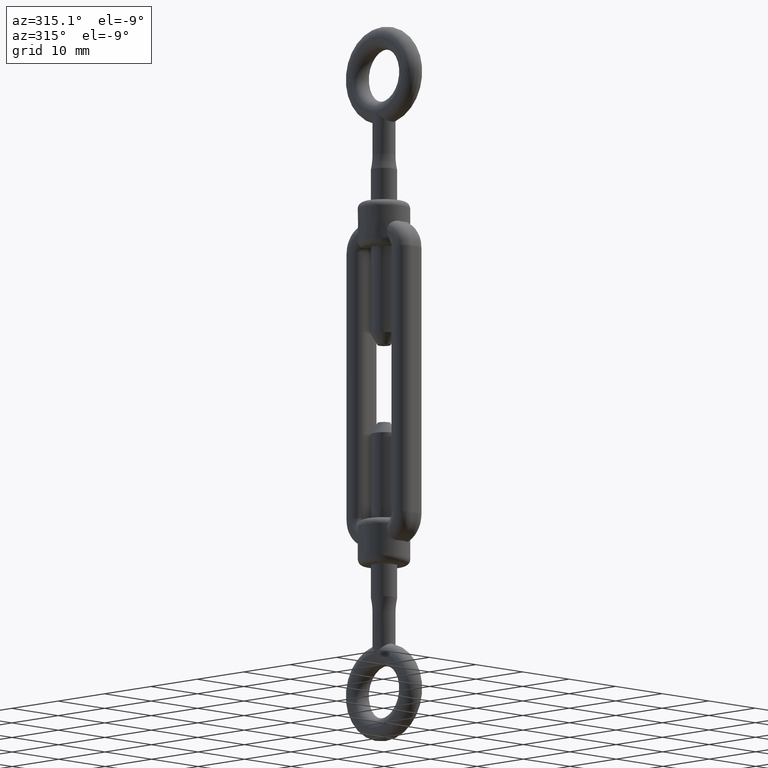
[diagram: clean part render]
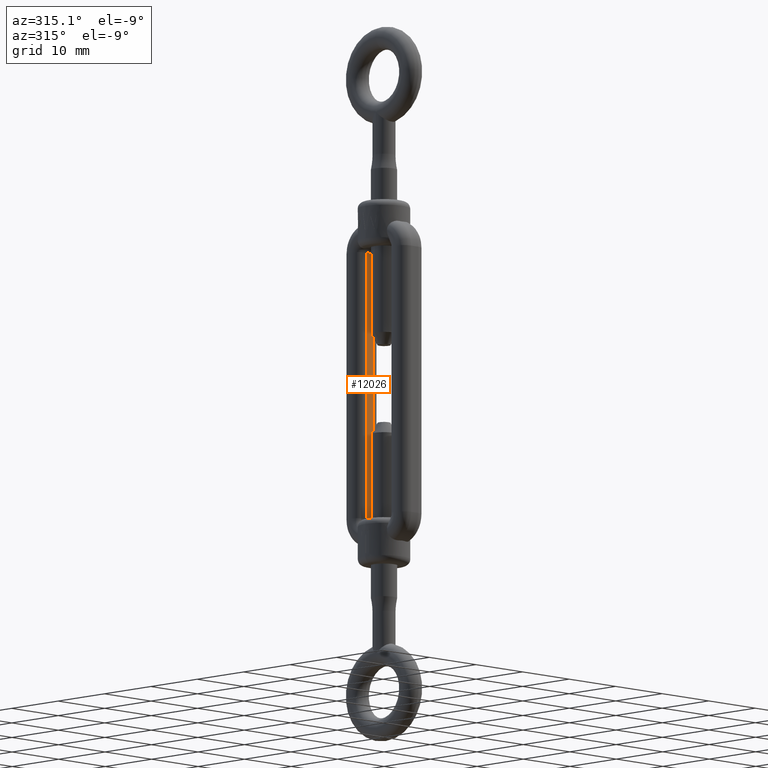
[diagram: same view with one face highlighted and labeled with its STEP entity id]
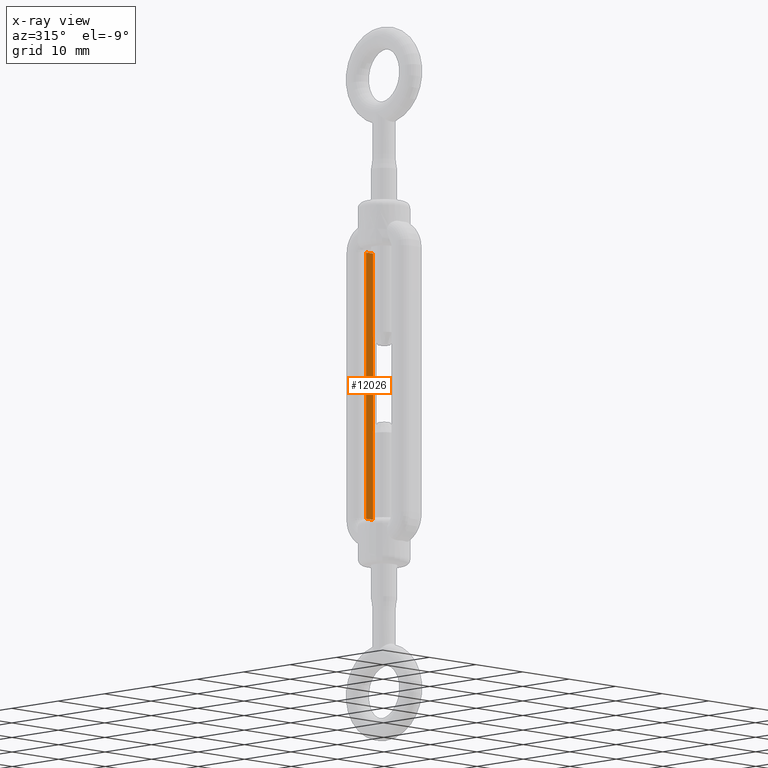
[diagram: x-ray of the same camera — body ghosted, the highlighted face saturated]
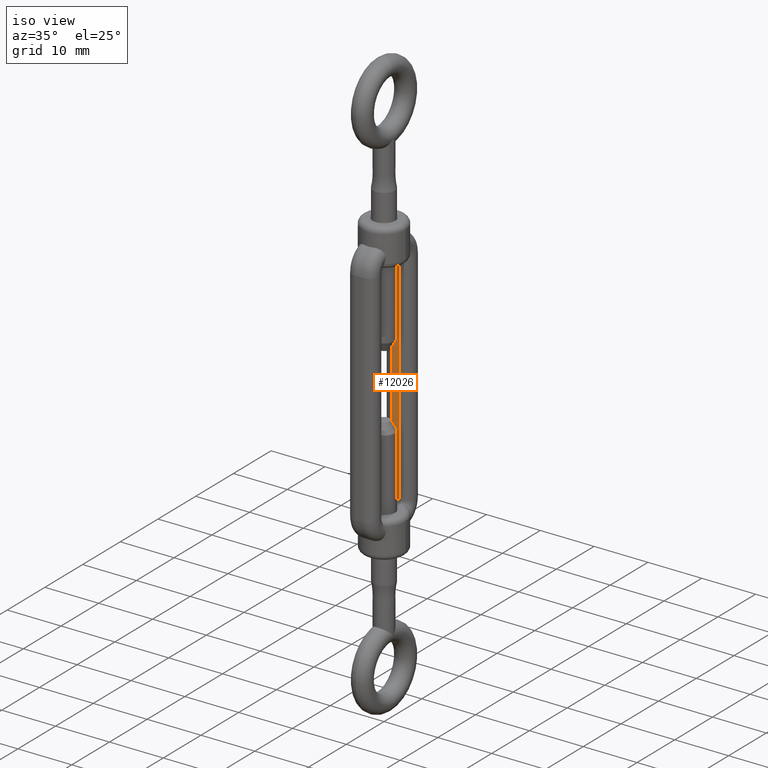
[diagram: same view with one face highlighted and labeled with its STEP entity id]
A machine part, auxiliary view. The second image highlights one B-rep face of the part: STEP entity #12026.
The next image is the same camera in x-ray: the body ghosted, the highlighted face saturated — about 0% of this face is hidden behind the body in this view.
A second angle (iso view) of the same face is appended — the face is thin or edge-on in the first view.
In plain terms, the highlighted planar face has unit normal (0, -1, 0).
Its self-contained STEP definition (entity closure, byte-faithful):
#382 = LINE ( 'NONE', #13721, #9232 ) ;
#590 = VECTOR ( 'NONE', #6315, 1000.000000000000000 ) ;
#595 = DIRECTION ( 'NONE',  ( 0.0000000000000000000, -1.057758217059028900E-016, -1.000000000000000000 ) ) ;
#741 = CARTESIAN_POINT ( 'NONE',  ( -0.7499999999999984500, 3.100000000000005400, 20.49999999999999300 ) ) ;
#2060 = VERTEX_POINT ( 'NONE', #10613 ) ;
#2294 = CARTESIAN_POINT ( 'NONE',  ( -0.7499999999999984500, 3.100000000000005400, 20.49999999999999300 ) ) ;
#3320 = VERTEX_POINT ( 'NONE', #7524 ) ;
#3341 = VERTEX_POINT ( 'NONE', #3486 ) ;
#3433 = DIRECTION ( 'NONE',  ( 0.0000000000000000000, -1.000000000000000000, 1.057758217059028900E-016 ) ) ;
#3486 = CARTESIAN_POINT ( 'NONE',  ( 0.7499999999999984500, 3.100000000000005400, 20.49999999999999300 ) ) ;
#4104 = VERTEX_POINT ( 'NONE', #13493 ) ;
#4444 = LINE ( 'NONE', #2294, #16666 ) ;
#4768 = DIRECTION ( 'NONE',  ( 0.0000000000000000000, -1.057758217059028900E-016, -1.000000000000000000 ) ) ;
#4949 = ORIENTED_EDGE ( 'NONE', *, *, #11794, .F. ) ;
#5566 = ORIENTED_EDGE ( 'NONE', *, *, #14064, .T. ) ;
#6315 = DIRECTION ( 'NONE',  ( -1.000000000000000000, 0.0000000000000000000, 0.0000000000000000000 ) ) ;
#6514 = EDGE_CURVE ( 'NONE', #4104, #2060, #382, .T. ) ;
#7182 = LINE ( 'NONE', #13918, #590 ) ;
#7524 = CARTESIAN_POINT ( 'NONE',  ( 0.7499999999999984500, 3.100000000000001000, -20.50000000000000000 ) ) ;
#7733 = EDGE_CURVE ( 'NONE', #3341, #3320, #12517, .T. ) ;
#8216 = ORIENTED_EDGE ( 'NONE', *, *, #7733, .F. ) ;
#8551 = PLANE ( 'NONE',  #9364 ) ;
#9232 = VECTOR ( 'NONE', #12265, 1000.000000000000000 ) ;
#9364 = AXIS2_PLACEMENT_3D ( 'NONE', #741, #3433, #4768 ) ;
#9429 = VECTOR ( 'NONE', #595, 1000.000000000000000 ) ;
#10613 = CARTESIAN_POINT ( 'NONE',  ( -0.7499999999999984500, 3.100000000000001000, -20.50000000000000000 ) ) ;
#11794 = EDGE_CURVE ( 'NONE', #3320, #2060, #7182, .T. ) ;
#12026 = ADVANCED_FACE ( 'NONE', ( #13997 ), #8551, .T. ) ;
#12265 = DIRECTION ( 'NONE',  ( 0.0000000000000000000, -1.057758217059028900E-016, -1.000000000000000000 ) ) ;
#12408 = CARTESIAN_POINT ( 'NONE',  ( 0.7499999999999984500, 3.100000000000005400, 20.49999999999999300 ) ) ;
#12517 = LINE ( 'NONE', #12408, #9429 ) ;
#13492 = EDGE_LOOP ( 'NONE', ( #5566, #16623, #4949, #8216 ) ) ;
#13493 = CARTESIAN_POINT ( 'NONE',  ( -0.7499999999999984500, 3.100000000000005400, 20.49999999999999300 ) ) ;
#13721 = CARTESIAN_POINT ( 'NONE',  ( -0.7499999999999984500, 3.100000000000005400, 20.49999999999999300 ) ) ;
#13918 = CARTESIAN_POINT ( 'NONE',  ( -0.7499999999999984500, 3.100000000000001000, -20.50000000000000000 ) ) ;
#13997 = FACE_OUTER_BOUND ( 'NONE', #13492, .T. ) ;
#14064 = EDGE_CURVE ( 'NONE', #3341, #4104, #4444, .T. ) ;
#16623 = ORIENTED_EDGE ( 'NONE', *, *, #6514, .T. ) ;
#16666 = VECTOR ( 'NONE', #16988, 1000.000000000000000 ) ;
#16988 = DIRECTION ( 'NONE',  ( -1.000000000000000000, 0.0000000000000000000, 0.0000000000000000000 ) ) ;